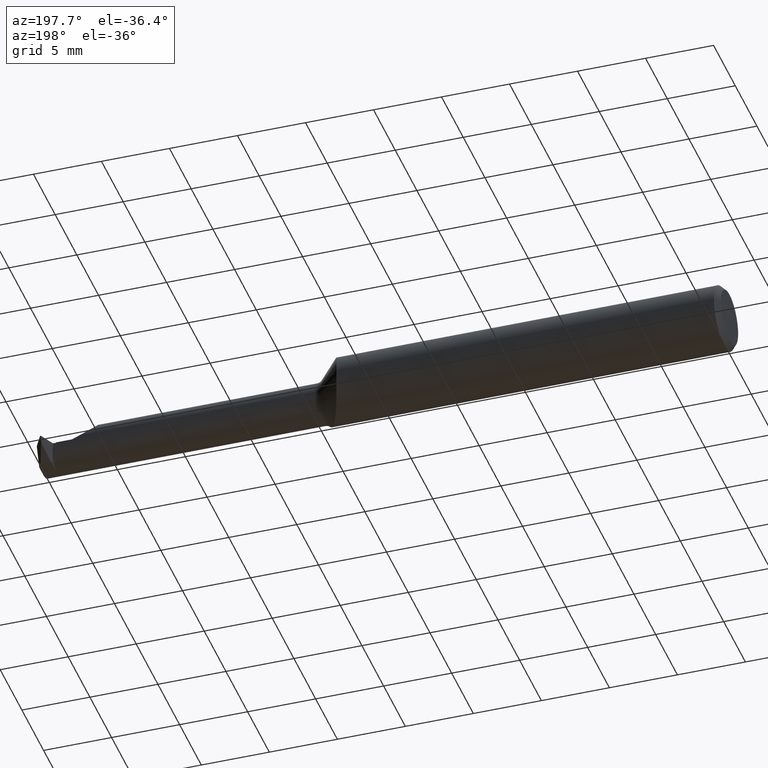
[diagram: clean part render]
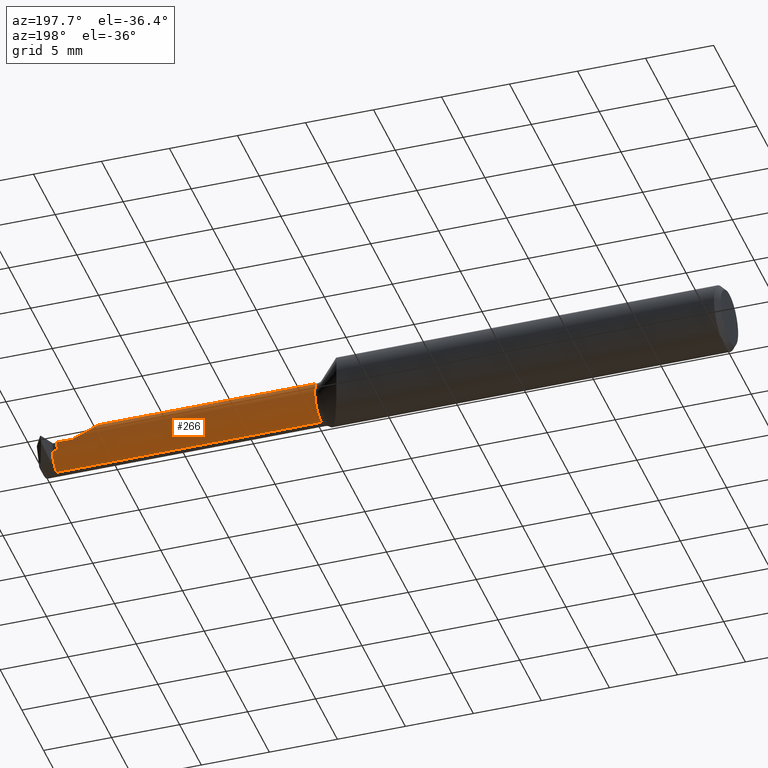
[diagram: same view with one face highlighted and labeled with its STEP entity id]
A machine part, auxiliary view. The second image highlights one B-rep face of the part: STEP entity #266.
In plain terms, the highlighted cylindrical surface (edge-blend (fillet) strip) has radius 1.524 mm, axis along (-1, -0, -0).
Its self-contained STEP definition (entity closure, byte-faithful):
#6 = VERTEX_POINT ( 'NONE', #680 ) ;
#8 = CARTESIAN_POINT ( 'NONE',  ( 1.184999999999999831, 0.009856536218723205289, -0.02724699498103109671 ) ) ;
#18 = CARTESIAN_POINT ( 'NONE',  ( 1.850399999999999379, -0.04360000000000000681, 0.05999999999999999778 ) ) ;
#25 = DIRECTION ( 'NONE',  ( -1.000000000000000000, -0.000000000000000000, -0.000000000000000000 ) ) ;
#37 = CARTESIAN_POINT ( 'NONE',  ( 1.958797035050163116, -0.0006669446669314034850, -0.04789326579007528728 ) ) ;
#42 = VECTOR ( 'NONE', #25, 39.37007874015748143 ) ;
#44 = EDGE_CURVE ( 'NONE', #917, #470, #71, .T. ) ;
#60 = CARTESIAN_POINT ( 'NONE',  ( 1.896798777021039273, 0.01630738327627578171, -0.003332480906079971113 ) ) ;
#64 = DIRECTION ( 'NONE',  ( 0.000000000000000000, 0.000000000000000000, 1.000000000000000000 ) ) ;
#65 = EDGE_LOOP ( 'NONE', ( #597, #384, #521, #962, #96, #270, #461, #677, #309, #1047, #392 ) ) ;
#71 =( BOUNDED_CURVE ( )  B_SPLINE_CURVE ( 3, ( #779, #614, #37, #1038 ),
 .UNSPECIFIED., .F., .T. ) 
 B_SPLINE_CURVE_WITH_KNOTS ( ( 4, 4 ),
 ( 3.342305517569140960, 4.441721434652711409 ),
 .UNSPECIFIED. ) 
 CURVE ( )  GEOMETRIC_REPRESENTATION_ITEM ( )  RATIONAL_B_SPLINE_CURVE ( ( 1.000000000000000000, 0.9017847546951444082, 0.9017847546951444082, 1.000000000000000000 ) ) 
 REPRESENTATION_ITEM ( '' )  );
#75 = CARTESIAN_POINT ( 'NONE',  ( 1.942620373637391484, 0.01584213080176300609, -0.01169623724749642261 ) ) ;
#87 = CARTESIAN_POINT ( 'NONE',  ( 1.184999999999999831, -0.04360000000000000681, 0.000000000000000000 ) ) ;
#96 = ORIENTED_EDGE ( 'NONE', *, *, #312, .T. ) ;
#116 = CARTESIAN_POINT ( 'NONE',  ( 1.832015459715254257, -0.01315755423167326056, 0.05179728536999017585 ) ) ;
#122 = B_SPLINE_CURVE_WITH_KNOTS ( 'NONE', 3,
 ( #478, #804, #321, #445 ),
 .UNSPECIFIED., .F., .F.,
 ( 4, 4 ),
 ( 0.000000000000000000, 1.000000000000000000 ),
 .UNSPECIFIED. ) ;
#159 = CARTESIAN_POINT ( 'NONE',  ( 1.184999999999999831, 0.01630738327627581641, -0.003332480906080046140 ) ) ;
#175 = B_SPLINE_CURVE_WITH_KNOTS ( 'NONE', 3,
 ( #687, #369, #295, #116, #602, #694, #272, #518 ),
 .UNSPECIFIED., .F., .F.,
 ( 4, 2, 2, 4 ),
 ( 0.003265010361189597376, 0.003523303455756640959, 0.003781596550323684108, 0.004298182739457771274 ),
 .UNSPECIFIED. ) ;
#202 = CARTESIAN_POINT ( 'NONE',  ( 1.956257227912774788, 0.009856536218723200085, -0.02724699498103110365 ) ) ;
#224 = EDGE_CURVE ( 'NONE', #780, #611, #727, .T. ) ;
#227 = CARTESIAN_POINT ( 'NONE',  ( 1.833142237990343926, 0.005937891782291506576, 0.03398016940568627381 ) ) ;
#232 = DIRECTION ( 'NONE',  ( 1.000000000000000000, 0.000000000000000000, 0.000000000000000000 ) ) ;
#235 = CARTESIAN_POINT ( 'NONE',  ( 1.842042451051776997, 0.01076529854796518665, 0.02547025266505690763 ) ) ;
#266 = ADVANCED_FACE ( 'NONE', ( #807 ), #977, .T. ) ;
#269 = CARTESIAN_POINT ( 'NONE',  ( 1.851906874573397754, -0.03023757964185313021, 0.05849312542660189962 ) ) ;
#270 = ORIENTED_EDGE ( 'NONE', *, *, #852, .F. ) ;
#272 = CARTESIAN_POINT ( 'NONE',  ( 1.846216599758046195, -0.02666001586205672680, 0.05767585141815955579 ) ) ;
#295 = CARTESIAN_POINT ( 'NONE',  ( 1.829251100658288109, -0.007957894166484087012, 0.04836674030581517708 ) ) ;
#309 = ORIENTED_EDGE ( 'NONE', *, *, #567, .F. ) ;
#310 = CARTESIAN_POINT ( 'NONE',  ( 1.831581829498387437, 0.004156990047637443633, 0.03632175521075289154 ) ) ;
#312 = EDGE_CURVE ( 'NONE', #742, #6, #734, .T. ) ;
#321 = CARTESIAN_POINT ( 'NONE',  ( 1.830600468062557828, 0.002083279594548063940, 0.03904833515974594216 ) ) ;
#327 = B_SPLINE_CURVE_WITH_KNOTS ( 'NONE', 3,
 ( #60, #1049, #387, #724, #964, #235, #713, #1043, #227, #310 ),
 .UNSPECIFIED., .F., .F.,
 ( 4, 2, 2, 2, 4 ),
 ( 0.0009894441996767509590, 0.001991381201394776257, 0.002492349702253797254, 0.002742833952683315993, 0.002993318203112834731 ),
 .UNSPECIFIED. ) ;
#335 = CARTESIAN_POINT ( 'NONE',  ( 1.828637745190898611, -0.002732563862903389720, 0.04393008836299248238 ) ) ;
#349 = VERTEX_POINT ( 'NONE', #829 ) ;
#369 = CARTESIAN_POINT ( 'NONE',  ( 1.828496610294325198, -0.005243808589019849364, 0.04626625788355390873 ) ) ;
#384 = ORIENTED_EDGE ( 'NONE', *, *, #818, .T. ) ;
#387 = CARTESIAN_POINT ( 'NONE',  ( 1.872404127851040379, 0.01637454520963418578, 0.006737563156796508301 ) ) ;
#392 = ORIENTED_EDGE ( 'NONE', *, *, #827, .F. ) ;
#400 = CARTESIAN_POINT ( 'NONE',  ( 1.939456536218723048, 0.009856536218723252127, -0.02724699498103093712 ) ) ;
#404 = CARTESIAN_POINT ( 'NONE',  ( 1.940974930079892857, 0.01366052855813472931, -0.01978385071836776324 ) ) ;
#415 = CARTESIAN_POINT ( 'NONE',  ( 1.195355339059327227, -0.04360000000000000681, 0.05999999999999999778 ) ) ;
#425 = CARTESIAN_POINT ( 'NONE',  ( 1.184999999999999831, -0.04360000000000000681, 0.05999999999999999778 ) ) ;
#426 = CARTESIAN_POINT ( 'NONE',  ( 1.850399999999999157, -0.03909872696711524237, 0.06000000000000001860 ) ) ;
#430 = CARTESIAN_POINT ( 'NONE',  ( 1.184999999999999831, -0.04359999999999999987, -0.05999999999999999778 ) ) ;
#432 = VECTOR ( 'NONE', #548, 39.37007874015748143 ) ;
#445 = CARTESIAN_POINT ( 'NONE',  ( 1.831581829498387437, 0.004156990047637443633, 0.03632175521075289154 ) ) ;
#461 = ORIENTED_EDGE ( 'NONE', *, *, #1020, .T. ) ;
#470 = VERTEX_POINT ( 'NONE', #202 ) ;
#478 = CARTESIAN_POINT ( 'NONE',  ( 1.828637745190898611, -0.002732563862903389720, 0.04393008836299248238 ) ) ;
#493 = LINE ( 'NONE', #430, #42 ) ;
#507 = AXIS2_PLACEMENT_3D ( 'NONE', #959, #232, #553 ) ;
#518 = CARTESIAN_POINT ( 'NONE',  ( 1.851906874573397754, -0.03023757964185313021, 0.05849312542660189962 ) ) ;
#521 = ORIENTED_EDGE ( 'NONE', *, *, #596, .T. ) ;
#540 = CARTESIAN_POINT ( 'NONE',  ( 1.961119976209501070, -0.04360000000000001374, -0.06000000000000001166 ) ) ;
#548 = DIRECTION ( 'NONE',  ( -1.000000000000000000, -0.000000000000000000, -0.000000000000000000 ) ) ;
#553 = DIRECTION ( 'NONE',  ( 0.000000000000000000, 0.000000000000000000, 1.000000000000000000 ) ) ;
#567 = EDGE_CURVE ( 'NONE', #611, #349, #972, .T. ) ;
#585 = CARTESIAN_POINT ( 'NONE',  ( 1.850399999999999379, -0.04360000000000000681, 0.05999999999999999778 ) ) ;
#590 = VERTEX_POINT ( 'NONE', #642 ) ;
#596 = EDGE_CURVE ( 'NONE', #927, #811, #845, .T. ) ;
#597 = ORIENTED_EDGE ( 'NONE', *, *, #44, .F. ) ;
#602 = CARTESIAN_POINT ( 'NONE',  ( 1.834005219439634127, -0.01567704656444247543, 0.05316837843728439844 ) ) ;
#611 = VERTEX_POINT ( 'NONE', #635 ) ;
#612 = CARTESIAN_POINT ( 'NONE',  ( 1.195355339059327227, -0.04359999999999999987, -0.05999999999999999778 ) ) ;
#614 = CARTESIAN_POINT ( 'NONE',  ( 1.960594488478455855, -0.02042647743067265917, -0.06000000000000002554 ) ) ;
#635 = CARTESIAN_POINT ( 'NONE',  ( 1.944321999096872311, 0.01630738327627595519, -0.003332480906080033129 ) ) ;
#642 = CARTESIAN_POINT ( 'NONE',  ( 1.831581829498387437, 0.004156990047637443633, 0.03632175521075289154 ) ) ;
#652 = LINE ( 'NONE', #425, #929 ) ;
#654 = CARTESIAN_POINT ( 'NONE',  ( 1.944321999096872311, 0.01630738327627595519, -0.003332480906080033129 ) ) ;
#658 = CARTESIAN_POINT ( 'NONE',  ( 1.939456536218723048, 0.009856536218723252127, -0.02724699498103093712 ) ) ;
#666 = CARTESIAN_POINT ( 'NONE',  ( 1.850904409533193906, -0.03462580511005158151, 0.05949559046680519964 ) ) ;
#675 = AXIS2_PLACEMENT_3D ( 'NONE', #87, #795, #64 ) ;
#677 = ORIENTED_EDGE ( 'NONE', *, *, #992, .F. ) ;
#680 = CARTESIAN_POINT ( 'NONE',  ( 1.851906874573397754, -0.03023757964185313021, 0.05849312542660189962 ) ) ;
#687 = CARTESIAN_POINT ( 'NONE',  ( 1.828637745190898611, -0.002732563862903389720, 0.04393008836299248238 ) ) ;
#694 = CARTESIAN_POINT ( 'NONE',  ( 1.840702605406867809, -0.02263010674176882397, 0.05644939994009504775 ) ) ;
#713 = CARTESIAN_POINT ( 'NONE',  ( 1.839616560198140238, 0.009799446392420318314, 0.02746815832903631849 ) ) ;
#724 = CARTESIAN_POINT ( 'NONE',  ( 1.855293964964911391, 0.01424548388428790134, 0.01626300100815213090 ) ) ;
#727 =( BOUNDED_CURVE ( )  B_SPLINE_CURVE ( 3, ( #400, #404, #75, #654 ),
 .UNSPECIFIED., .F., .F. ) 
 B_SPLINE_CURVE_WITH_KNOTS ( ( 4, 4 ),
 ( 1.099415917083573335, 1.515226382604686783 ),
 .UNSPECIFIED. ) 
 CURVE ( )  GEOMETRIC_REPRESENTATION_ITEM ( )  RATIONAL_B_SPLINE_CURVE ( ( 1.000000000000000000, 0.9856436290335572892, 0.9856436290335572892, 1.000000000000000000 ) ) 
 REPRESENTATION_ITEM ( '' )  );
#734 =( BOUNDED_CURVE ( )  B_SPLINE_CURVE ( 3, ( #585, #426, #666, #269 ),
 .UNSPECIFIED., .F., .F. ) 
 B_SPLINE_CURVE_WITH_KNOTS ( ( 4, 4 ),
 ( 0.000000000000000000, 0.2245903366161187131 ),
 .UNSPECIFIED. ) 
 CURVE ( )  GEOMETRIC_REPRESENTATION_ITEM ( )  RATIONAL_B_SPLINE_CURVE ( ( 1.000000000000000000, 0.9958010136815392821, 0.9958010136815392821, 1.000000000000000000 ) ) 
 REPRESENTATION_ITEM ( '' )  );
#740 = EDGE_CURVE ( 'NONE', #742, #811, #652, .T. ) ;
#742 = VERTEX_POINT ( 'NONE', #18 ) ;
#748 = DIRECTION ( 'NONE',  ( -1.000000000000000000, -0.000000000000000000, -0.000000000000000000 ) ) ;
#763 = VERTEX_POINT ( 'NONE', #335 ) ;
#779 = CARTESIAN_POINT ( 'NONE',  ( 1.961119976209501070, -0.04360000000000001374, -0.06000000000000001166 ) ) ;
#780 = VERTEX_POINT ( 'NONE', #658 ) ;
#795 = DIRECTION ( 'NONE',  ( -1.000000000000000000, -0.000000000000000000, -0.000000000000000000 ) ) ;
#804 = CARTESIAN_POINT ( 'NONE',  ( 1.829619106626728220, -0.0002244724197753956247, 0.04159685228955042890 ) ) ;
#807 = FACE_OUTER_BOUND ( 'NONE', #65, .T. ) ;
#811 = VERTEX_POINT ( 'NONE', #415 ) ;
#818 = EDGE_CURVE ( 'NONE', #917, #927, #493, .T. ) ;
#827 = EDGE_CURVE ( 'NONE', #470, #780, #914, .T. ) ;
#829 = CARTESIAN_POINT ( 'NONE',  ( 1.896798777021039273, 0.01630738327627578171, -0.003332480906079971113 ) ) ;
#845 = CIRCLE ( 'NONE', #507, 0.05999999999999999778 ) ;
#852 = EDGE_CURVE ( 'NONE', #763, #6, #175, .T. ) ;
#914 = LINE ( 'NONE', #8, #1056 ) ;
#917 = VERTEX_POINT ( 'NONE', #540 ) ;
#927 = VERTEX_POINT ( 'NONE', #612 ) ;
#929 = VECTOR ( 'NONE', #980, 39.37007874015748143 ) ;
#959 = CARTESIAN_POINT ( 'NONE',  ( 1.195355339059327227, -0.04360000000000000681, 0.000000000000000000 ) ) ;
#962 = ORIENTED_EDGE ( 'NONE', *, *, #740, .F. ) ;
#964 = CARTESIAN_POINT ( 'NONE',  ( 1.849695287952169975, 0.01321345061180660696, 0.01973599902981119925 ) ) ;
#972 = LINE ( 'NONE', #159, #432 ) ;
#977 = CYLINDRICAL_SURFACE ( 'NONE', #675, 0.05999999999999999778 ) ;
#980 = DIRECTION ( 'NONE',  ( -1.000000000000000000, -0.000000000000000000, -0.000000000000000000 ) ) ;
#992 = EDGE_CURVE ( 'NONE', #349, #590, #327, .T. ) ;
#1020 = EDGE_CURVE ( 'NONE', #763, #590, #122, .T. ) ;
#1038 = CARTESIAN_POINT ( 'NONE',  ( 1.956257227912774788, 0.009856536218723200085, -0.02724699498103110365 ) ) ;
#1043 = CARTESIAN_POINT ( 'NONE',  ( 1.835158345573425942, 0.007382581723426188784, 0.03172974878280866717 ) ) ;
#1047 = ORIENTED_EDGE ( 'NONE', *, *, #224, .F. ) ;
#1049 = CARTESIAN_POINT ( 'NONE',  ( 1.884521818493612333, 0.01657004378869487288, 0.001389317787597010552 ) ) ;
#1056 = VECTOR ( 'NONE', #748, 39.37007874015748143 ) ;